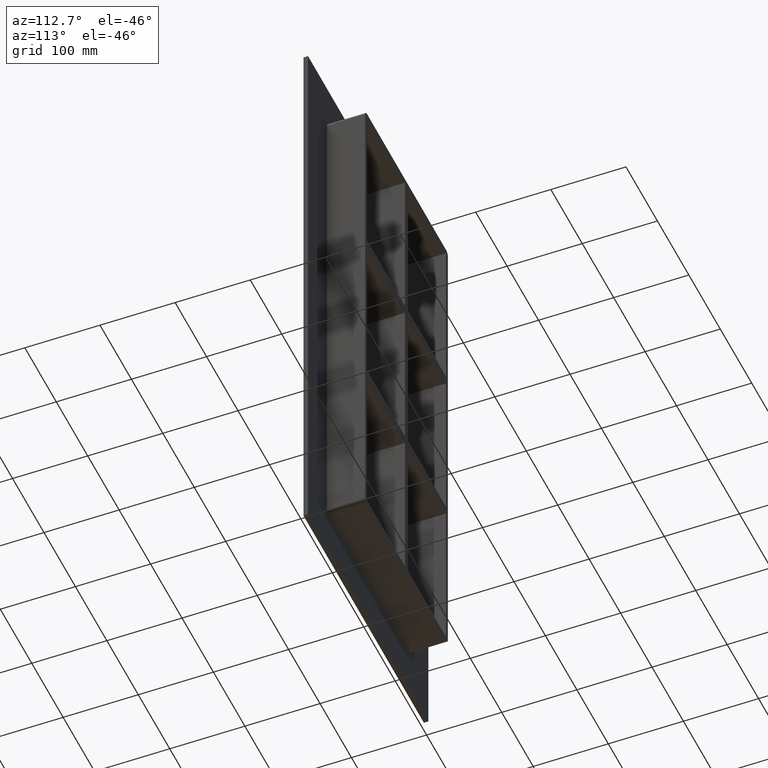
[diagram: clean part render]
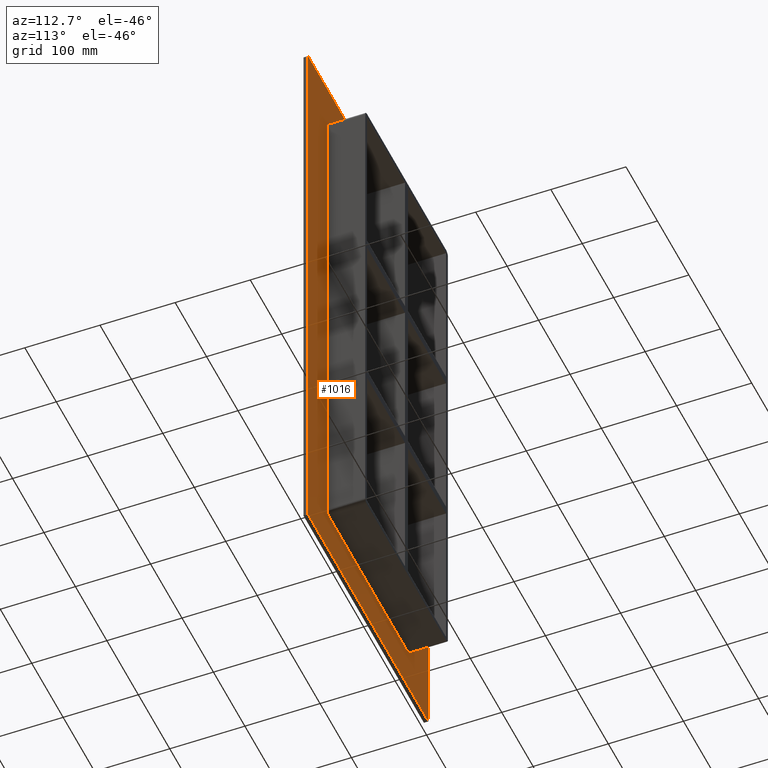
[diagram: same view with one face highlighted and labeled with its STEP entity id]
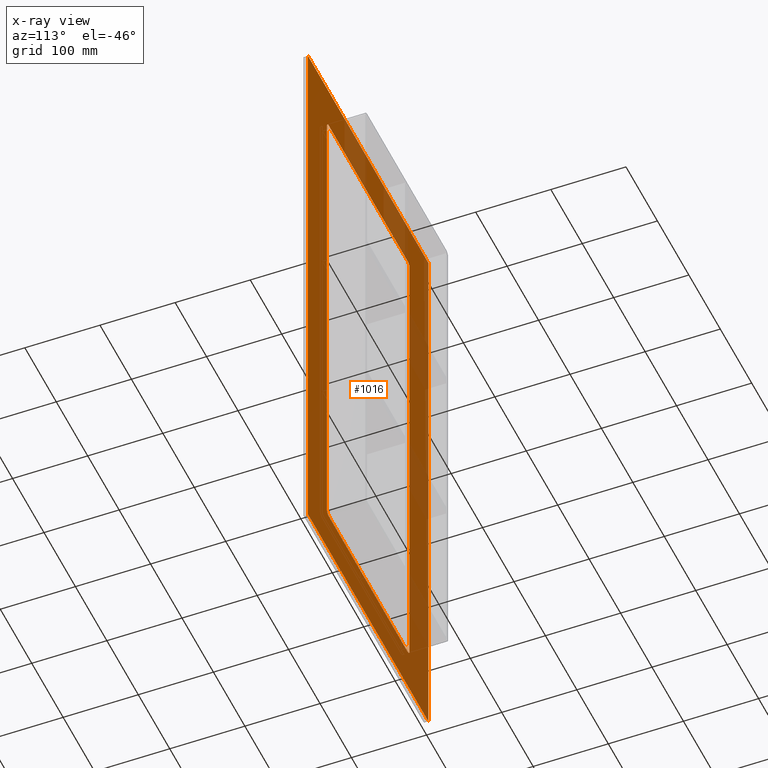
[diagram: x-ray of the same camera — body ghosted, the highlighted face saturated]
A machine part, auxiliary view. The second image highlights one B-rep face of the part: STEP entity #1016.
The next image is the same camera in x-ray: the body ghosted, the highlighted face saturated — about 22% of this face is hidden behind the body in this view.
In plain terms, the highlighted planar face has unit normal (0, 1, 0).
Its self-contained STEP definition (entity closure, byte-faithful):
#907=CARTESIAN_POINT('',(0.0,6.000000000000001,0.0));
#908=DIRECTION('',(0.0,1.0,0.0));
#909=DIRECTION('',(0.0,0.0,1.0));
#910=AXIS2_PLACEMENT_3D('',#907,#908,#909);
#911=PLANE('',#910);
#912=CARTESIAN_POINT('',(-191.5,6.000000000000001,405.00000000000006));
#913=VERTEX_POINT('',#912);
#914=CARTESIAN_POINT('',(191.5,6.000000000000001,405.00000000000006));
#915=VERTEX_POINT('',#914);
#916=CARTESIAN_POINT('',(-191.5,6.000000000000001,405.00000000000006));
#917=DIRECTION('',(1.0,0.0,0.0));
#918=VECTOR('',#917,383.0);
#919=LINE('',#916,#918);
#920=EDGE_CURVE('',#913,#915,#919,.T.);
#921=ORIENTED_EDGE('',*,*,#920,.T.);
#922=CARTESIAN_POINT('',(191.5,6.000000000000001,-405.00000000000006));
#923=VERTEX_POINT('',#922);
#924=CARTESIAN_POINT('',(191.5,6.000000000000001,405.00000000000006));
#925=DIRECTION('',(0.0,0.0,-1.0));
#926=VECTOR('',#925,810.00000000000011);
#927=LINE('',#924,#926);
#928=EDGE_CURVE('',#915,#923,#927,.T.);
#929=ORIENTED_EDGE('',*,*,#928,.T.);
#930=CARTESIAN_POINT('',(-191.5,6.000000000000001,-405.00000000000006));
#931=VERTEX_POINT('',#930);
#932=CARTESIAN_POINT('',(191.5,6.000000000000001,-405.00000000000006));
#933=DIRECTION('',(-1.0,0.0,0.0));
#934=VECTOR('',#933,383.0);
#935=LINE('',#932,#934);
#936=EDGE_CURVE('',#923,#931,#935,.T.);
#937=ORIENTED_EDGE('',*,*,#936,.T.);
#938=CARTESIAN_POINT('',(-191.5,6.000000000000001,-405.00000000000006));
#939=DIRECTION('',(0.0,0.0,1.0));
#940=VECTOR('',#939,810.00000000000011);
#941=LINE('',#938,#940);
#942=EDGE_CURVE('',#931,#913,#941,.T.);
#943=ORIENTED_EDGE('',*,*,#942,.T.);
#944=EDGE_LOOP('',(#921,#929,#937,#943));
#945=FACE_OUTER_BOUND('',#944,.T.);
#946=CARTESIAN_POINT('',(-125.5,6.000000000000001,-345.00000000000006));
#947=VERTEX_POINT('',#946);
#948=CARTESIAN_POINT('',(-131.5,6.000000000000001,-339.00000000000006));
#949=VERTEX_POINT('',#948);
#950=CARTESIAN_POINT('',(-125.5,6.000000000000001,-339.00000000000006));
#951=DIRECTION('',(0.0,1.0,0.0));
#952=DIRECTION('',(-0.70710678118655,0.0,-0.707106781186545));
#953=AXIS2_PLACEMENT_3D('',#950,#951,#952);
#954=CIRCLE('',#953,6.000000000000001);
#955=EDGE_CURVE('',#947,#949,#954,.T.);
#956=ORIENTED_EDGE('',*,*,#955,.F.);
#957=CARTESIAN_POINT('',(125.5,6.000000000000001,-345.00000000000006));
#958=VERTEX_POINT('',#957);
#959=CARTESIAN_POINT('',(125.50000000000001,6.000000000000001,-345.00000000000006));
#960=DIRECTION('',(-1.0,0.0,0.0));
#961=VECTOR('',#960,251.0);
#962=LINE('',#959,#961);
#963=EDGE_CURVE('',#958,#947,#962,.T.);
#964=ORIENTED_EDGE('',*,*,#963,.F.);
#965=CARTESIAN_POINT('',(131.50000000000003,6.000000000000001,-339.00000000000006));
#966=VERTEX_POINT('',#965);
#967=CARTESIAN_POINT('',(125.5,6.000000000000001,-339.00000000000006));
#968=DIRECTION('',(0.0,1.0,0.0));
#969=DIRECTION('',(0.707106781186552,0.0,-0.707106781186543));
#970=AXIS2_PLACEMENT_3D('',#967,#968,#969);
#971=CIRCLE('',#970,6.000000000000001);
#972=EDGE_CURVE('',#966,#958,#971,.T.);
#973=ORIENTED_EDGE('',*,*,#972,.F.);
#974=CARTESIAN_POINT('',(131.50000000000003,6.000000000000001,339.00000000000006));
#975=VERTEX_POINT('',#974);
#976=CARTESIAN_POINT('',(131.50000000000003,6.000000000000001,339.00000000000006));
#977=DIRECTION('',(0.0,0.0,-1.0));
#978=VECTOR('',#977,678.0);
#979=LINE('',#976,#978);
#980=EDGE_CURVE('',#975,#966,#979,.T.);
#981=ORIENTED_EDGE('',*,*,#980,.F.);
#982=CARTESIAN_POINT('',(125.50000000000004,6.000000000000001,345.00000000000006));
#983=VERTEX_POINT('',#982);
#984=CARTESIAN_POINT('',(125.50000000000004,6.000000000000001,339.00000000000006));
#985=DIRECTION('',(0.0,1.0,0.0));
#986=DIRECTION('',(0.70710678118655,0.0,0.707106781186545));
#987=AXIS2_PLACEMENT_3D('',#984,#985,#986);
#988=CIRCLE('',#987,6.000000000000001);
#989=EDGE_CURVE('',#983,#975,#988,.T.);
#990=ORIENTED_EDGE('',*,*,#989,.F.);
#991=CARTESIAN_POINT('',(-125.49999999999997,6.000000000000001,345.00000000000006));
#992=VERTEX_POINT('',#991);
#993=CARTESIAN_POINT('',(-125.49999999999997,6.000000000000001,345.00000000000006));
#994=DIRECTION('',(1.0,0.0,0.0));
#995=VECTOR('',#994,251.0);
#996=LINE('',#993,#995);
#997=EDGE_CURVE('',#992,#983,#996,.T.);
#998=ORIENTED_EDGE('',*,*,#997,.F.);
#999=CARTESIAN_POINT('',(-131.5,6.000000000000001,339.00000000000006));
#1000=VERTEX_POINT('',#999);
#1001=CARTESIAN_POINT('',(-125.49999999999997,6.000000000000001,339.00000000000006));
#1002=DIRECTION('',(0.0,1.0,0.0));
#1003=DIRECTION('',(-0.707106781186552,0.0,0.707106781186543));
#1004=AXIS2_PLACEMENT_3D('',#1001,#1002,#1003);
#1005=CIRCLE('',#1004,6.000000000000001);
#1006=EDGE_CURVE('',#1000,#992,#1005,.T.);
#1007=ORIENTED_EDGE('',*,*,#1006,.F.);
#1008=CARTESIAN_POINT('',(-131.5,6.000000000000001,-339.00000000000006));
#1009=DIRECTION('',(0.0,0.0,1.0));
#1010=VECTOR('',#1009,678.0);
#1011=LINE('',#1008,#1010);
#1012=EDGE_CURVE('',#949,#1000,#1011,.T.);
#1013=ORIENTED_EDGE('',*,*,#1012,.F.);
#1014=EDGE_LOOP('',(#956,#964,#973,#981,#990,#998,#1007,#1013));
#1015=FACE_BOUND('',#1014,.T.);
#1016=ADVANCED_FACE('',(#945,#1015),#911,.T.);